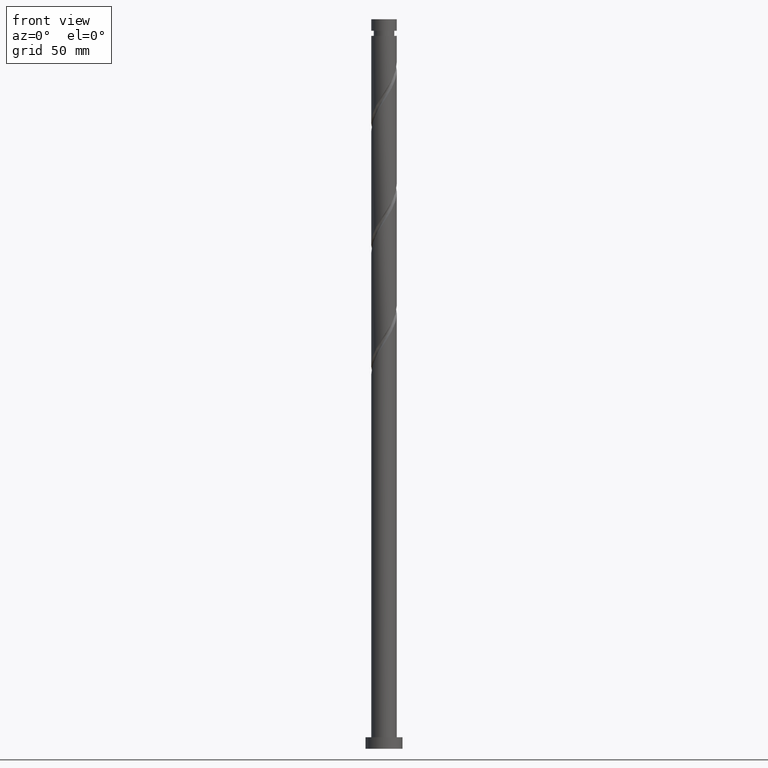
[diagram: clean part render]
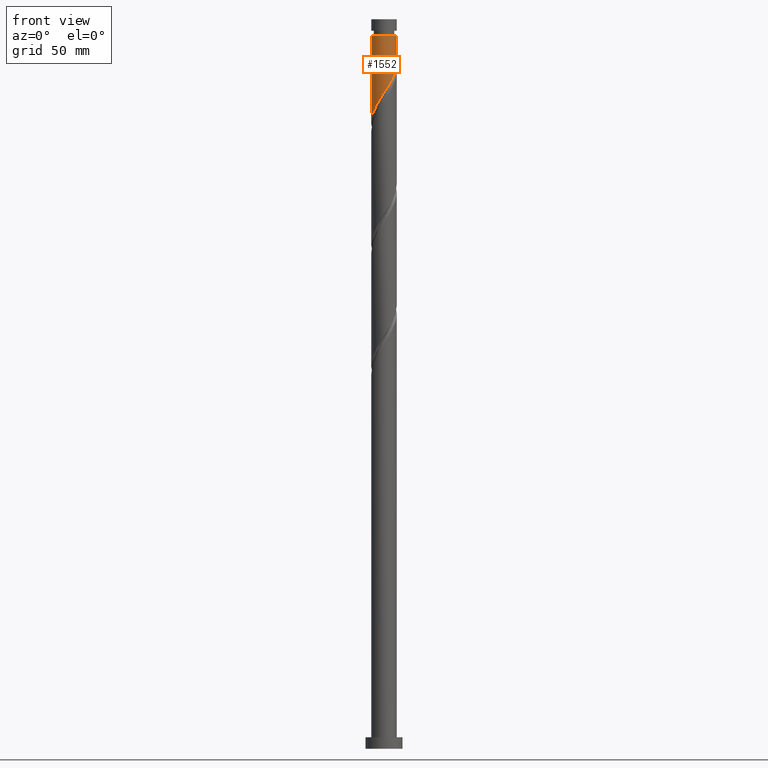
[diagram: same view with one face highlighted and labeled with its STEP entity id]
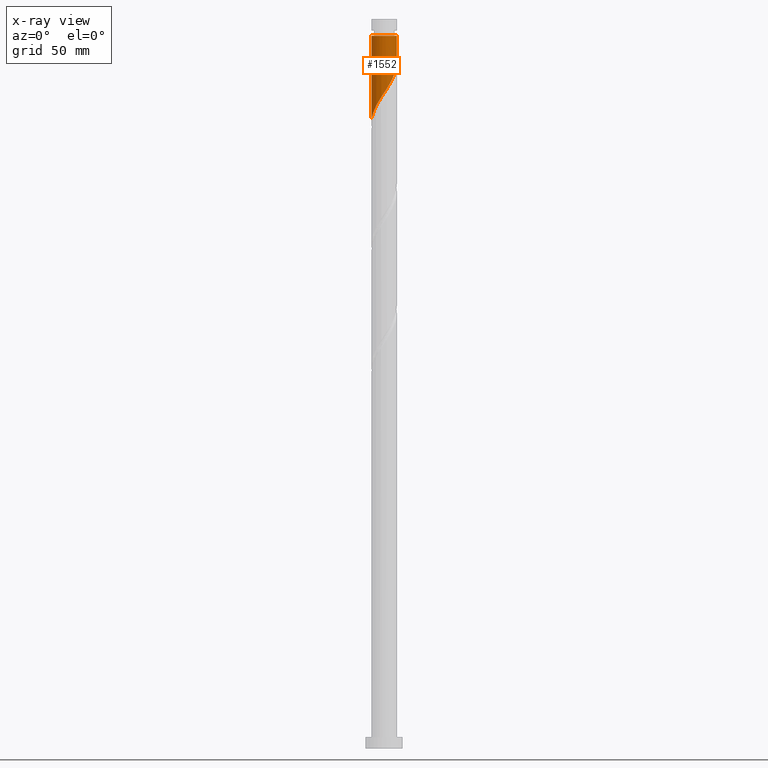
[diagram: x-ray of the same camera — body ghosted, the highlighted face saturated]
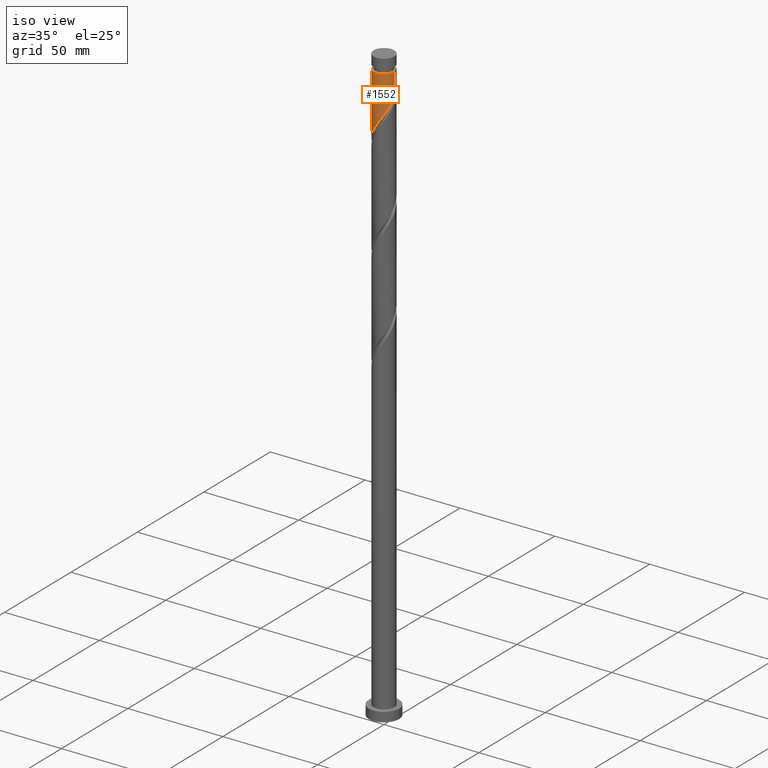
[diagram: same view with one face highlighted and labeled with its STEP entity id]
A machine part, front view. The second image highlights one B-rep face of the part: STEP entity #1552.
The next image is the same camera in x-ray: the body ghosted, the highlighted face saturated — about 0% of this face is hidden behind the body in this view.
A second angle (iso view) of the same face is appended — the face is thin or edge-on in the first view.
In plain terms, the highlighted cylindrical surface (edge-blend (fillet) strip) has radius 5.5 mm, axis along (-0, -0, -1).
Its self-contained STEP definition (entity closure, byte-faithful):
#15 = DIRECTION ( 'NONE',  ( -0.000000000000000000, -0.000000000000000000, -1.000000000000000000 ) ) ;
#31 = EDGE_LOOP ( 'NONE', ( #732, #1856, #1760, #1737 ) ) ;
#38 = DIRECTION ( 'NONE',  ( -0.000000000000000000, -0.000000000000000000, -1.000000000000000000 ) ) ;
#84 =( BOUNDED_CURVE ( )  B_SPLINE_CURVE ( 2, ( #1153, #873, #129, #410, #1015, #262, #1454, #725, #540, #1758, #1026, #1269, #532, #1123, #380, #842, #1425, #92, #1277, #1924, #917, #432, #1065, #1044, #440, #1051, #1626, #1809, #1492, #1191, #594 ),
 .UNSPECIFIED., .F., .T. ) 
 B_SPLINE_CURVE_WITH_KNOTS ( ( 3, 2, 2, 2, 2, 2, 2, 2, 2, 2, 2, 2, 2, 2, 2, 3 ),
 ( 0.3045303401299220281, 0.3125000000000000000, 0.3214285714285714524, 0.3303571428571428492, 0.3392857142857143016, 0.3482142857142856984, 0.3571428571428571508, 0.3660714285714285476, 0.3750000000000000000, 0.3839285714285714524, 0.3928571428571428492, 0.4017857142857143016, 0.4107142857142856984, 0.4196428571428571508, 0.4285714285714285476, 0.4295303401299222501 ),
 .UNSPECIFIED. ) 
 CURVE ( )  GEOMETRIC_REPRESENTATION_ITEM ( )  RATIONAL_B_SPLINE_CURVE ( ( 0.9079949616361981946, 0.9039886423360612433, 0.9090909090909280454, 0.9033747362666029179, 0.9090909090909280454, 0.9033747362666029179, 0.9090909090909280454, 0.9033747362666029179, 0.9090909090909280454, 0.9033747362666029179, 0.9090909090909280454, 0.9033747362666029179, 0.9090909090909280454, 0.9033747362666029179, 0.9090909090909280454, 0.9033747362666029179, 0.9090909090909280454, 0.9033747362666029179, 0.9090909090909280454, 0.9033747362666029179, 0.9090909090909280454, 0.9033747362666029179, 0.9090909090909280454, 0.9033747362666029179, 0.9090909090909280454, 0.9033747362666029179, 0.9090909090909280454, 0.9033747362666029179, 0.9090909090909280454, 0.9084770030214697201, 0.9079949616361979725 ) ) 
 REPRESENTATION_ITEM ( '' )  );
#92 = CARTESIAN_POINT ( 'NONE',  ( -1.701793326878883406, -5.266681024327271921, 280.6132921569054020 ) ) ;
#129 = CARTESIAN_POINT ( 'NONE',  ( 5.389999999999997016, -1.094486180817285437, 294.6757921569052883 ) ) ;
#165 = DIRECTION ( 'NONE',  ( -0.000000000000000000, -0.000000000000000000, -1.000000000000000000 ) ) ;
#205 = AXIS2_PLACEMENT_3D ( 'NONE', #799, #466, #1391 ) ;
#262 = CARTESIAN_POINT ( 'NONE',  ( 4.755949694677300776, -2.831072595522293067, 291.8632921569054020 ) ) ;
#315 = DIRECTION ( 'NONE',  ( -1.000000000000000000, 0.000000000000000000, 0.000000000000000000 ) ) ;
#341 = CYLINDRICAL_SURFACE ( 'NONE', #205, 5.500000000000000000 ) ;
#353 = VERTEX_POINT ( 'NONE', #966 ) ;
#380 = CARTESIAN_POINT ( 'NONE',  ( 0.1323427068484802072, -5.498407533817768034, 283.4257921569054020 ) ) ;
#410 = CARTESIAN_POINT ( 'NONE',  ( 5.266681024327271921, -1.701793326878884072, 293.7382921569053451 ) ) ;
#432 = CARTESIAN_POINT ( 'NONE',  ( -3.818390062696567444, -4.006735188219775701, 276.8632921569054020 ) ) ;
#440 = CARTESIAN_POINT ( 'NONE',  ( -4.896472662517569852, -2.504906278729422286, 274.0507921569052314 ) ) ;
#461 = EDGE_CURVE ( 'NONE', #353, #819, #84, .T. ) ;
#466 = DIRECTION ( 'NONE',  ( -0.000000000000000000, -0.000000000000000000, -1.000000000000000000 ) ) ;
#523 = EDGE_CURVE ( 'NONE', #588, #1173, #667, .T. ) ;
#532 = CARTESIAN_POINT ( 'NONE',  ( 1.352535378577845337, -5.331101954539536614, 285.3007921569052883 ) ) ;
#540 = CARTESIAN_POINT ( 'NONE',  ( 3.531670718487787131, -4.216313785307722384, 289.0507921569052883 ) ) ;
#554 = VECTOR ( 'NONE', #38, 1000.000000000000000 ) ;
#588 = VERTEX_POINT ( 'NONE', #764 ) ;
#594 = CARTESIAN_POINT ( 'NONE',  ( -5.499999999999998224, 1.873184576951543434E-15, 270.1003092348113910 ) ) ;
#605 = CARTESIAN_POINT ( 'NONE',  ( -5.500000000000000000, 0.000000000000000000, 315.0000000000000000 ) ) ;
#646 = VECTOR ( 'NONE', #15, 1000.000000000000000 ) ;
#667 = CIRCLE ( 'NONE', #934, 5.499999999999973355 ) ;
#725 = CARTESIAN_POINT ( 'NONE',  ( 4.006735188219775701, -3.818390062696567444, 289.9882921569054588 ) ) ;
#732 = ORIENTED_EDGE ( 'NONE', *, *, #1411, .F. ) ;
#764 = CARTESIAN_POINT ( 'NONE',  ( 5.499999999999973355, 6.735557395310427232E-16, 307.8007921569053451 ) ) ;
#799 = CARTESIAN_POINT ( 'NONE',  ( 0.000000000000000000, 0.000000000000000000, 315.0000000000000000 ) ) ;
#819 = VERTEX_POINT ( 'NONE', #1376 ) ;
#842 = CARTESIAN_POINT ( 'NONE',  ( -0.4871790347556871348, -5.513318975672725664, 282.4882921569054588 ) ) ;
#873 = CARTESIAN_POINT ( 'NONE',  ( 5.499999999999998224, -0.5527707983925699287, 295.5120381558477902 ) ) ;
#881 = LINE ( 'NONE', #605, #646 ) ;
#899 = CARTESIAN_POINT ( 'NONE',  ( 0.000000000000000000, 0.000000000000000000, 307.8007921569053451 ) ) ;
#917 = CARTESIAN_POINT ( 'NONE',  ( -3.324731329109428923, -4.381342441448537350, 277.8007921569052883 ) ) ;
#934 = AXIS2_PLACEMENT_3D ( 'NONE', #899, #165, #315 ) ;
#966 = CARTESIAN_POINT ( 'NONE',  ( 5.499999999999998224, -2.514992838377172061E-15, 296.3503092348114478 ) ) ;
#1015 = CARTESIAN_POINT ( 'NONE',  ( 5.011315359502285460, -2.266432961200588014, 292.8007921569052314 ) ) ;
#1026 = CARTESIAN_POINT ( 'NONE',  ( 2.504906278729422286, -4.896472662517569852, 287.1757921569053451 ) ) ;
#1033 = LINE ( 'NONE', #1613, #554 ) ;
#1044 = CARTESIAN_POINT ( 'NONE',  ( -4.614237507918880432, -3.056606248755802113, 274.9882921569052883 ) ) ;
#1051 = CARTESIAN_POINT ( 'NONE',  ( -5.178707817116261047, -1.953206308703043792, 273.1132921569053451 ) ) ;
#1065 = CARTESIAN_POINT ( 'NONE',  ( -4.216313785307721496, -3.531670718487787131, 275.9257921569054020 ) ) ;
#1123 = CARTESIAN_POINT ( 'NONE',  ( 0.7518644484526477711, -5.483496091962811292, 284.3632921569054020 ) ) ;
#1153 = CARTESIAN_POINT ( 'NONE',  ( 5.499999999999998224, -2.514992838377172061E-15, 296.3503092348114478 ) ) ;
#1173 = VERTEX_POINT ( 'NONE', #1308 ) ;
#1191 = CARTESIAN_POINT ( 'NONE',  ( -5.499999999999999112, -0.06618093441512989950, 270.2006719230364524 ) ) ;
#1254 = FACE_OUTER_BOUND ( 'NONE', #31, .T. ) ;
#1269 = CARTESIAN_POINT ( 'NONE',  ( 1.953206308703043792, -5.178707817116261047, 286.2382921569054020 ) ) ;
#1277 = CARTESIAN_POINT ( 'NONE',  ( -2.266432961200587570, -5.011315359502285460, 279.6757921569053451 ) ) ;
#1292 = EDGE_CURVE ( 'NONE', #1173, #819, #881, .T. ) ;
#1308 = CARTESIAN_POINT ( 'NONE',  ( -5.499999999999973355, 0.000000000000000000, 307.8007921569053451 ) ) ;
#1376 = CARTESIAN_POINT ( 'NONE',  ( -5.499999999999998224, 1.873184576951543434E-15, 270.1003092348113910 ) ) ;
#1391 = DIRECTION ( 'NONE',  ( -1.000000000000000000, 0.000000000000000000, 0.000000000000000000 ) ) ;
#1411 = EDGE_CURVE ( 'NONE', #588, #353, #1033, .T. ) ;
#1425 = CARTESIAN_POINT ( 'NONE',  ( -1.094486180817284771, -5.389999999999997016, 281.5507921569052883 ) ) ;
#1454 = CARTESIAN_POINT ( 'NONE',  ( 4.381342441448537350, -3.324731329109428923, 290.9257921569053451 ) ) ;
#1492 = CARTESIAN_POINT ( 'NONE',  ( -5.498407533817768034, -0.1323427068484806235, 270.3007921569053451 ) ) ;
#1552 = ADVANCED_FACE ( 'NONE', ( #1254 ), #341, .T. ) ;
#1613 = CARTESIAN_POINT ( 'NONE',  ( 5.500000000000000000, 6.735557395310442023E-16, 315.0000000000000000 ) ) ;
#1626 = CARTESIAN_POINT ( 'NONE',  ( -5.331101954539536614, -1.352535378577845337, 272.1757921569053451 ) ) ;
#1737 = ORIENTED_EDGE ( 'NONE', *, *, #461, .F. ) ;
#1758 = CARTESIAN_POINT ( 'NONE',  ( 3.056606248755802113, -4.614237507918880432, 288.1132921569052314 ) ) ;
#1760 = ORIENTED_EDGE ( 'NONE', *, *, #1292, .T. ) ;
#1809 = CARTESIAN_POINT ( 'NONE',  ( -5.483496091962811292, -0.7518644484526477711, 271.2382921569053451 ) ) ;
#1856 = ORIENTED_EDGE ( 'NONE', *, *, #523, .T. ) ;
#1924 = CARTESIAN_POINT ( 'NONE',  ( -2.831072595522293067, -4.755949694677300776, 278.7382921569054020 ) ) ;